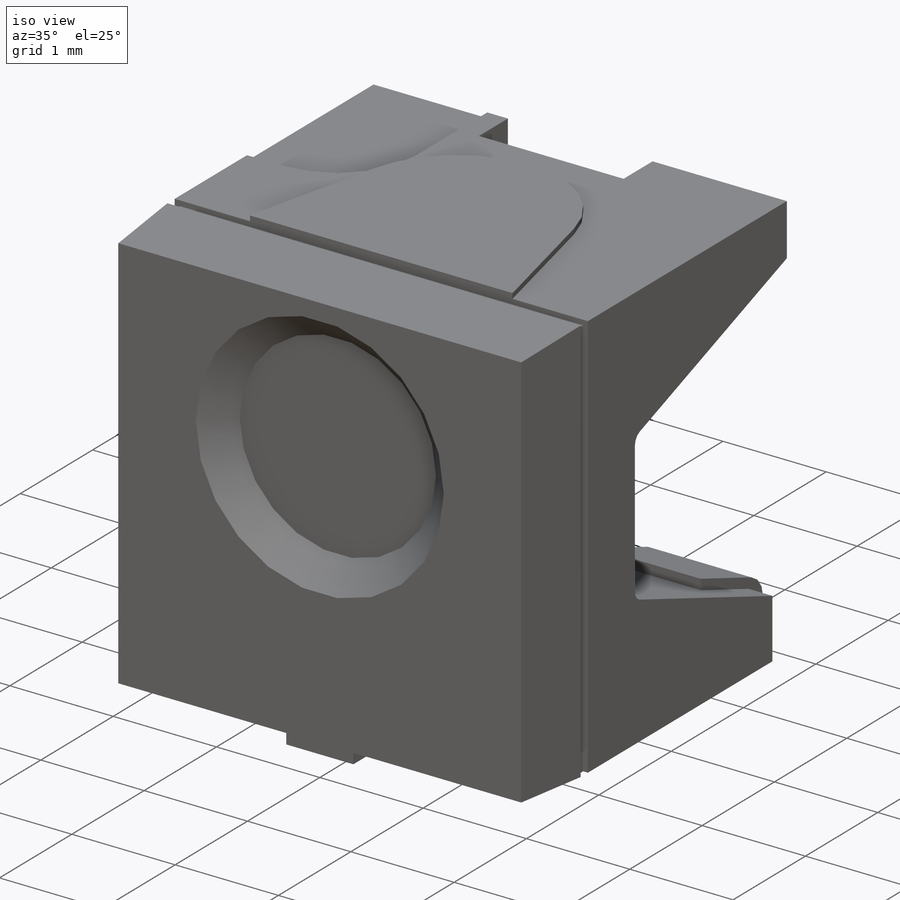
[diagram: iso view]
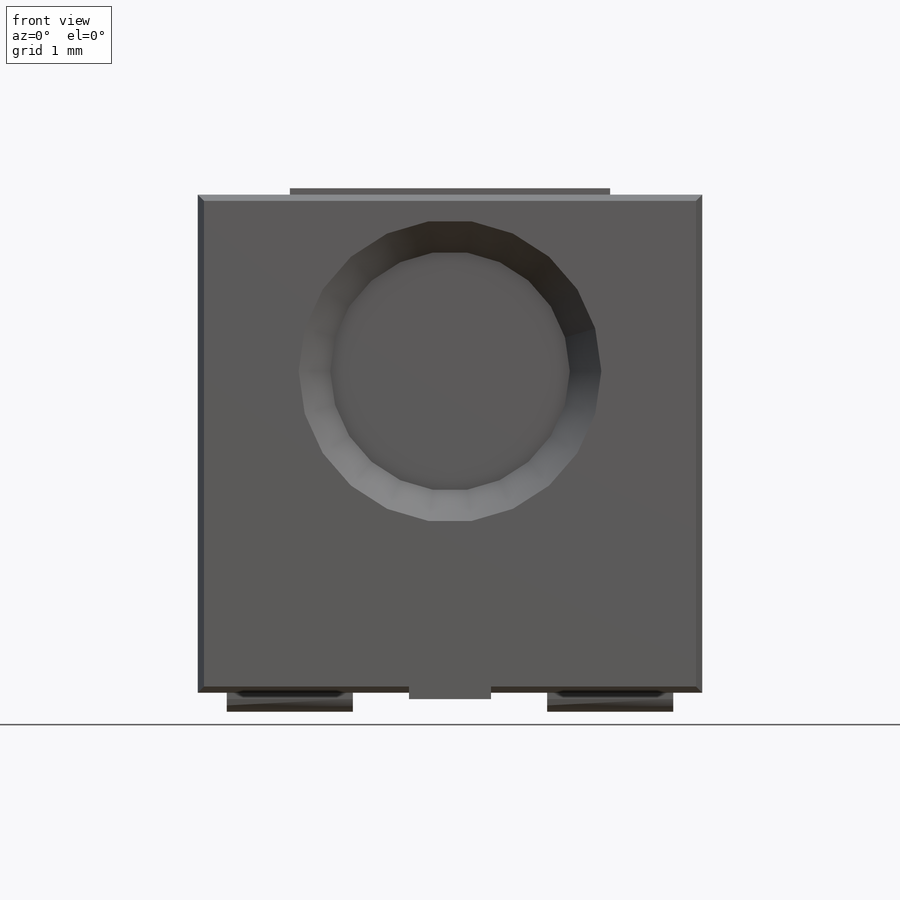
[diagram: front view]
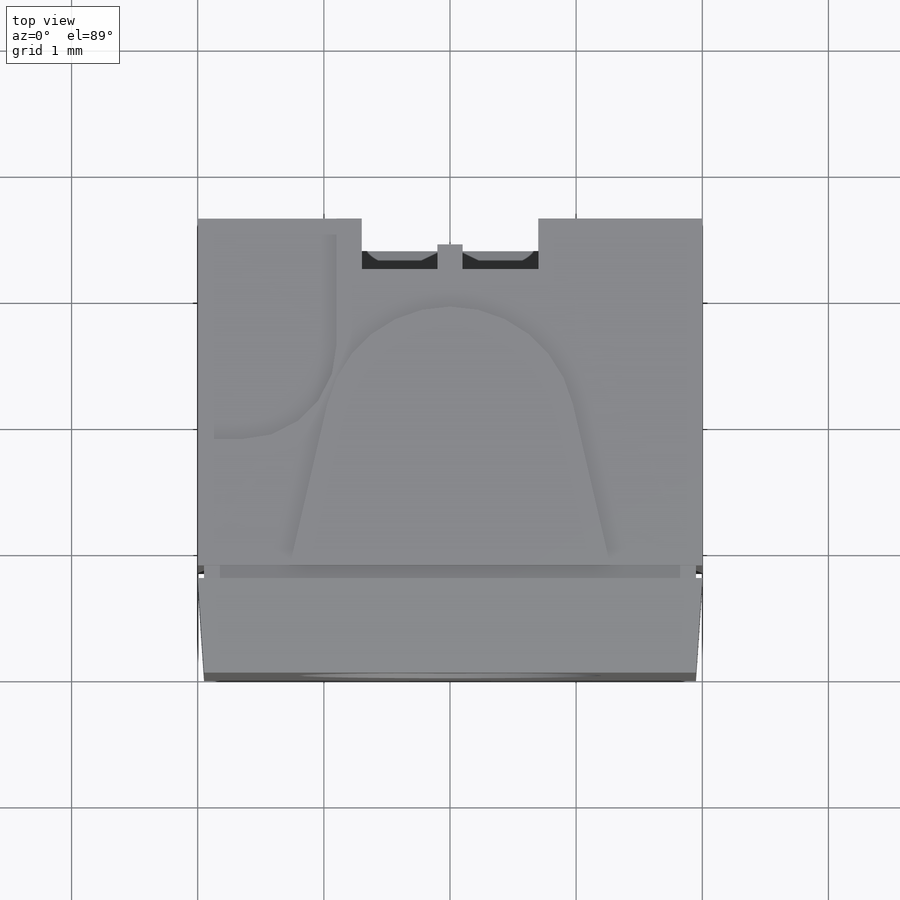
[diagram: top view]
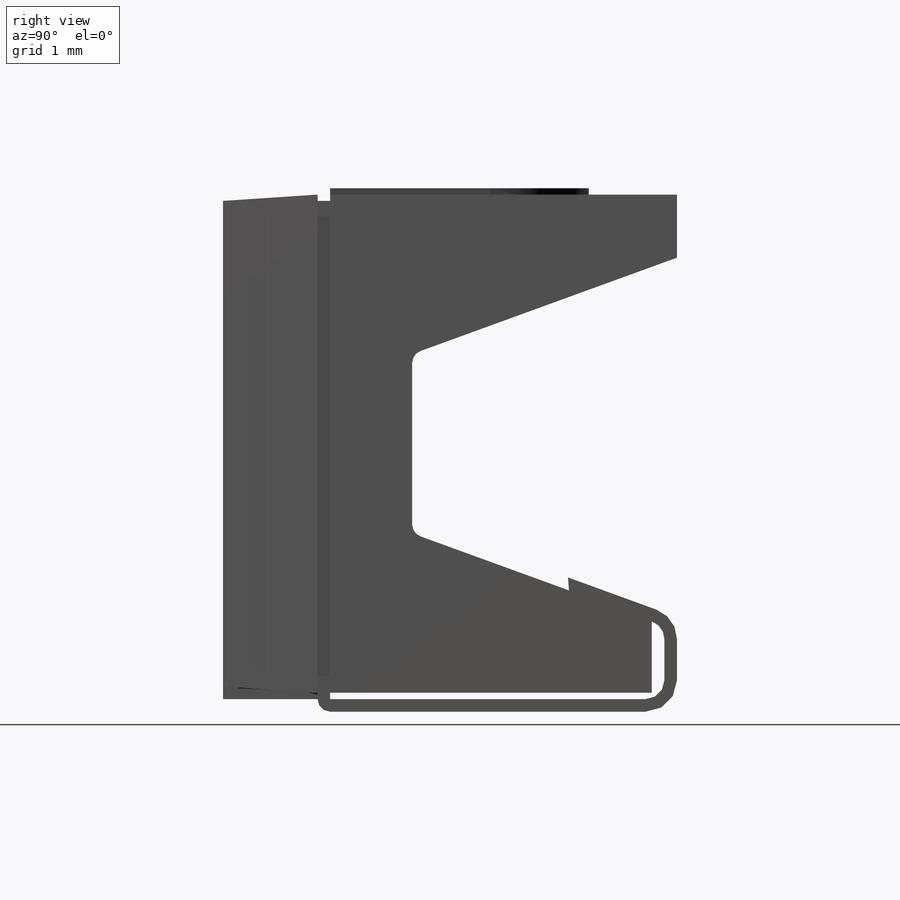
[diagram: right view]
SOLIDWORKS PART (.sldprt)
format: sldprt  version: not decoded by parser v0  size: 963,072 bytes
history: native  units: mm
features: sketch x16, cut_extrude x10, extrude x6, chamfer x2, fillet x2, plane x2, material x1 (+12 scaffold rows collapsed)
feature tree (51):
  scaffold x12  (default folders/planes/origin — collapsed)
  material  "Material <not specified>"
  sketch  "Sketch1"  dims[D1=4.0mm D2=4.0mm D3=0.65mm D4=0.05mm]
  extrude  "Extrude1"  Depth=0.75mm
  sketch  "Sketch2"  dims[D1=2.4mm D2=2.6mm]
  cut_extrude  "Cut-Extrude1"  Depth=0.25mm
  chamfer  "Chamfer1"  Distance=0.25mm
  sketch  "Sketch3"  dims[c1.D5=1.0mm c1.D1=3.6mm c1.D2=1.4mm c1.D3=0.25mm c1.D4=0.1mm c1.D6=2.9mm c1.D7=0.3mm c1.D8=2.85mm c1.D9=2.54mm c1.D10=1.1mm c1.D11=0.2mm c2.D3=1.75mm c2.D11=1.0mm]
  extrude  "Extrude2"  [1 undecoded]
  cut_extrude  "Cut-Extrude2"  [1 undecoded]
  sketch  "Sketch3<3>"  dims[D1=0.05mm]
  extrude  "Extrude3"  [1 undecoded]
  sketch  "Sketch3<4>"  dims[D1=0.05mm]
  cut_extrude  "Cut-Extrude3"  [1 undecoded]
  sketch  "Sketch3<6>"  dims[D1=0.05mm]
  sketch  "Sketch4"  dims[c1.D1=0.5mm c1.D2=1.5mm c1.D3=~1.321636mm c2.D3=110.0deg]
  chamfer  "Chamfer3"  Distance=0.05mm
  cut_extrude  "Cut-Extrude4"  [1 undecoded]
  cut_extrude  "Cut-Extrude5"  [1 undecoded]
  sketch  "Sketch3<7>"
  sketch  "Sketch6"  dims[D1=2.0mm]
  cut_extrude  "Cut-Extrude6"  [1 undecoded]
  fillet  "Fillet1"  Radius=0.1mm
  cut_extrude  "Cut-Extrude7"  [1 undecoded]
  sketch  "Sketch4<3>"  dims[D1=0.05mm]
  sketch  "Sketch7"  dims[D1=0.2mm]
  cut_extrude  "Cut-Extrude8"  [1 undecoded]
  sketch  "Sketch9"
  cut_extrude  "Cut-Extrude9"  Depth=0.05mm
  plane  "Plane4"  Offset=1.27mm
  sketch  "Sketch20"  dims[D4=0.25mm D5=0.15mm D2=0.15mm D3=0.75mm D6=2.85mm D7=0.7mm D8=0.7mm D1=0.1mm]
  extrude  "Extrude5"  Depth=1mm
  plane  "Plane5"  Offset=2.54mm
  sketch  "Sketch21"
  extrude  "Extrude6"  Depth=1mm
  fillet  "Fillet2"  Radius=0.1mm
  sketch  "Sketch22"  dims[D1=0.2mm D2=0.2mm D3=0.25mm]
  extrude  "Extrude7"  Depth=0.2mm
  sketch  "Sketch23"
  cut_extrude  "Cut-Extrude10"  Depth=0.01mm
decode coverage: 23 of 36 modeling features carry decoded parameters
note: ~ marks probable driven/reference dimensions
note: 9 parameter values undecoded
summary: no parameter record found for 9 features
note: suppression state not decoded; provenance and decode notes live in map.json
